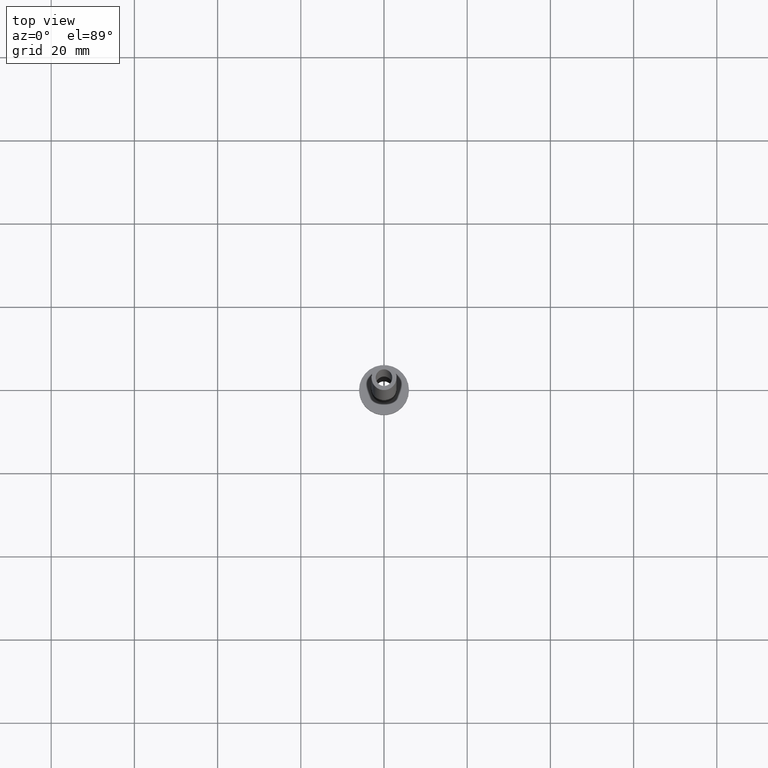
[diagram: clean part render]
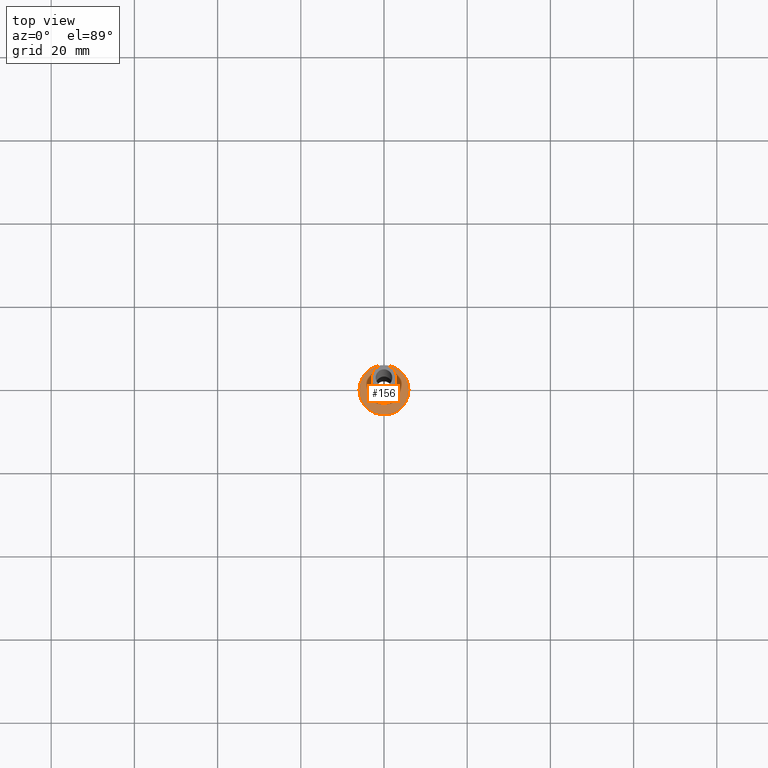
[diagram: same view with one face highlighted and labeled with its STEP entity id]
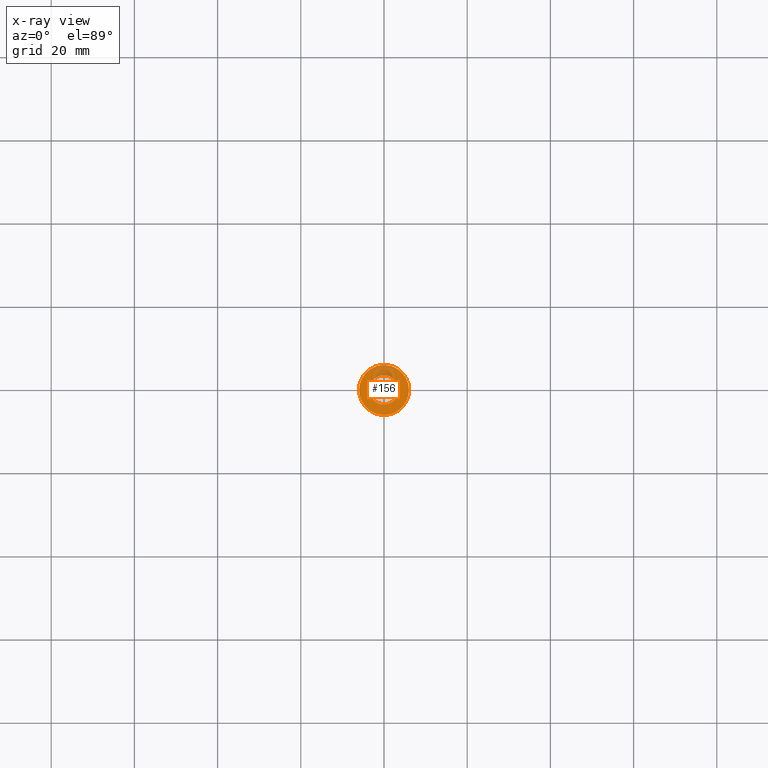
[diagram: x-ray of the same camera — body ghosted, the highlighted face saturated]
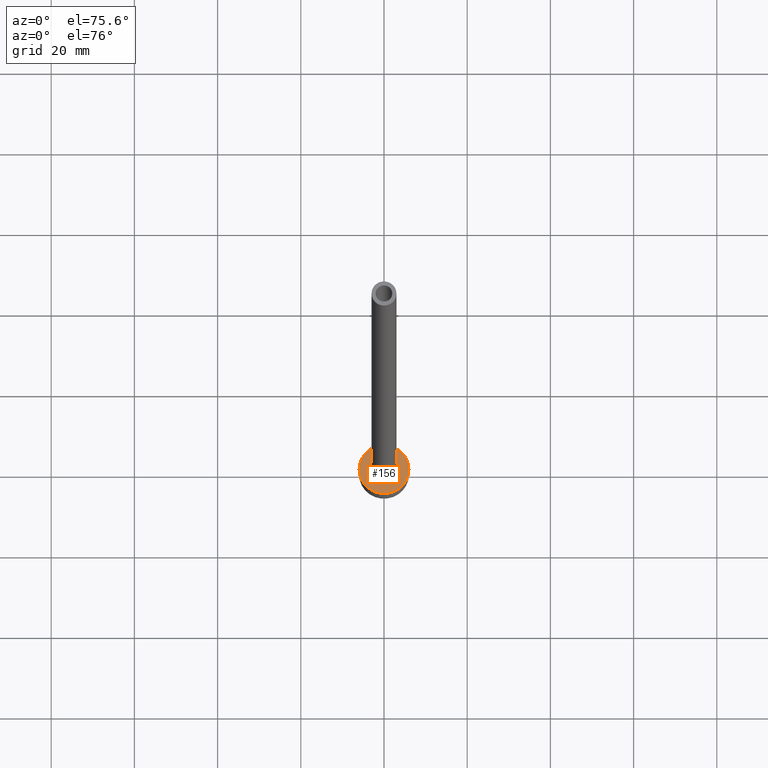
[diagram: same view with one face highlighted and labeled with its STEP entity id]
A machine part, top view. The second image highlights one B-rep face of the part: STEP entity #156.
The next image is the same camera in x-ray: the body ghosted, the highlighted face saturated — about 19% of this face is hidden behind the body in this view.
A second angle (auxiliary view) of the same face is appended — the face is thin or edge-on in the first view.
In plain terms, the highlighted planar face has unit normal (0, 0, 1).
Its self-contained STEP definition (entity closure, byte-faithful):
#6 = CIRCLE ( 'NONE', #447, 6.000000000000000888 ) ;
#9 = CARTESIAN_POINT ( 'NONE',  ( 0.000000000000000000, 0.000000000000000000, 5.000000000000000000 ) ) ;
#17 = CARTESIAN_POINT ( 'NONE',  ( 0.000000000000000000, 0.000000000000000000, 5.000000000000000000 ) ) ;
#21 = DIRECTION ( 'NONE',  ( 1.000000000000000000, 0.000000000000000000, 0.000000000000000000 ) ) ;
#29 = DIRECTION ( 'NONE',  ( 0.000000000000000000, 0.000000000000000000, 1.000000000000000000 ) ) ;
#30 = AXIS2_PLACEMENT_3D ( 'NONE', #92, #378, #90 ) ;
#33 = PLANE ( 'NONE',  #373 ) ;
#43 = CIRCLE ( 'NONE', #30, 3.500000000000000444 ) ;
#49 = ORIENTED_EDGE ( 'NONE', *, *, #218, .T. ) ;
#50 = EDGE_LOOP ( 'NONE', ( #339, #49 ) ) ;
#63 = EDGE_LOOP ( 'NONE', ( #327, #87 ) ) ;
#73 = DIRECTION ( 'NONE',  ( 1.000000000000000000, 0.000000000000000000, -0.000000000000000000 ) ) ;
#87 = ORIENTED_EDGE ( 'NONE', *, *, #232, .T. ) ;
#90 = DIRECTION ( 'NONE',  ( 1.000000000000000000, 0.000000000000000000, 0.000000000000000000 ) ) ;
#92 = CARTESIAN_POINT ( 'NONE',  ( 0.000000000000000000, 0.000000000000000000, 5.000000000000000000 ) ) ;
#106 = EDGE_CURVE ( 'NONE', #133, #416, #6, .T. ) ;
#107 = DIRECTION ( 'NONE',  ( 1.000000000000000000, 0.000000000000000000, 0.000000000000000000 ) ) ;
#112 = DIRECTION ( 'NONE',  ( 0.000000000000000000, 0.000000000000000000, 1.000000000000000000 ) ) ;
#116 = CARTESIAN_POINT ( 'NONE',  ( 0.000000000000000000, 0.000000000000000000, 5.000000000000000000 ) ) ;
#133 = VERTEX_POINT ( 'NONE', #277 ) ;
#156 = ADVANCED_FACE ( 'NONE', ( #208, #391 ), #33, .T. ) ;
#175 = CIRCLE ( 'NONE', #298, 6.000000000000000888 ) ;
#178 = VERTEX_POINT ( 'NONE', #211 ) ;
#182 = CARTESIAN_POINT ( 'NONE',  ( -3.500000000000000444, 4.286263797015737088E-16, 5.000000000000002665 ) ) ;
#204 = VERTEX_POINT ( 'NONE', #182 ) ;
#208 = FACE_BOUND ( 'NONE', #50, .T. ) ;
#211 = CARTESIAN_POINT ( 'NONE',  ( 3.500000000000000444, 0.000000000000000000, 5.000000000000002665 ) ) ;
#218 = EDGE_CURVE ( 'NONE', #204, #178, #260, .T. ) ;
#232 = EDGE_CURVE ( 'NONE', #416, #133, #175, .T. ) ;
#260 = CIRCLE ( 'NONE', #321, 3.500000000000000444 ) ;
#277 = CARTESIAN_POINT ( 'NONE',  ( -6.000000000000000888, 0.000000000000000000, 5.000000000000000000 ) ) ;
#283 = CARTESIAN_POINT ( 'NONE',  ( 0.000000000000000000, 0.000000000000000000, 5.000000000000000000 ) ) ;
#298 = AXIS2_PLACEMENT_3D ( 'NONE', #9, #112, #107 ) ;
#321 = AXIS2_PLACEMENT_3D ( 'NONE', #116, #326, #363 ) ;
#326 = DIRECTION ( 'NONE',  ( -0.000000000000000000, -0.000000000000000000, -1.000000000000000000 ) ) ;
#327 = ORIENTED_EDGE ( 'NONE', *, *, #106, .T. ) ;
#339 = ORIENTED_EDGE ( 'NONE', *, *, #407, .T. ) ;
#363 = DIRECTION ( 'NONE',  ( 1.000000000000000000, 0.000000000000000000, 0.000000000000000000 ) ) ;
#373 = AXIS2_PLACEMENT_3D ( 'NONE', #283, #29, #73 ) ;
#378 = DIRECTION ( 'NONE',  ( -0.000000000000000000, -0.000000000000000000, -1.000000000000000000 ) ) ;
#391 = FACE_OUTER_BOUND ( 'NONE', #63, .T. ) ;
#407 = EDGE_CURVE ( 'NONE', #178, #204, #43, .T. ) ;
#416 = VERTEX_POINT ( 'NONE', #421 ) ;
#421 = CARTESIAN_POINT ( 'NONE',  ( 6.000000000000000888, 7.347880794884120722E-16, 5.000000000000000000 ) ) ;
#446 = DIRECTION ( 'NONE',  ( 0.000000000000000000, 0.000000000000000000, 1.000000000000000000 ) ) ;
#447 = AXIS2_PLACEMENT_3D ( 'NONE', #17, #446, #21 ) ;